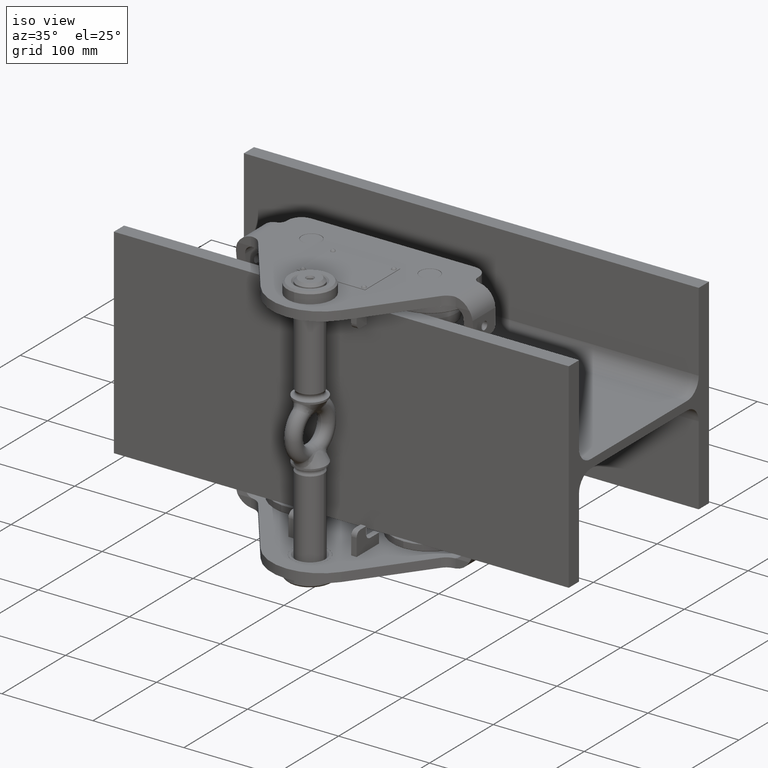
[diagram: clean part render]
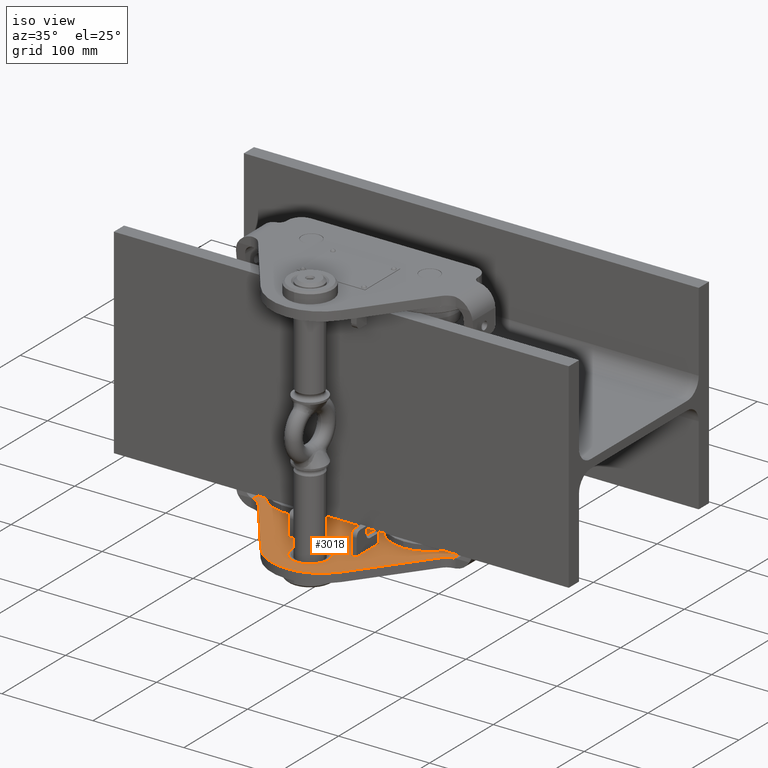
[diagram: same view with one face highlighted and labeled with its STEP entity id]
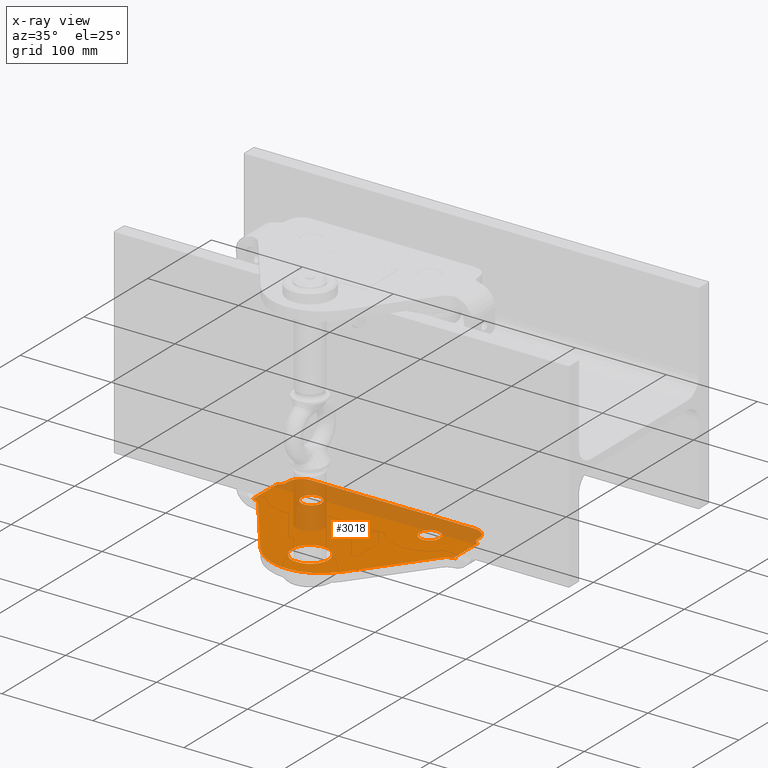
[diagram: x-ray of the same camera — body ghosted, the highlighted face saturated]
A machine part, iso view. The second image highlights one B-rep face of the part: STEP entity #3018.
The next image is the same camera in x-ray: the body ghosted, the highlighted face saturated — about 31% of this face is hidden behind the body in this view.
In plain terms, the highlighted planar face has unit normal (0, -0, 1).
Its self-contained STEP definition (entity closure, byte-faithful):
#83 = VERTEX_POINT ( 'NONE', #29218 ) ;
#91 = VERTEX_POINT ( 'NONE', #29359 ) ;
#158 = AXIS2_PLACEMENT_3D ( 'NONE', #26776, #2772, #5670 ) ;
#223 = VECTOR ( 'NONE', #8761, 1000.000000000000000 ) ;
#273 = DIRECTION ( 'NONE',  ( 0.0000000000000000000, -1.224606353822377300E-016, 1.000000000000000000 ) ) ;
#281 = EDGE_CURVE ( 'NONE', #27823, #20010, #11276, .T. ) ;
#1074 = CARTESIAN_POINT ( 'NONE',  ( 64.99999999999990100, -74.99999999999967300, -125.0000000000001100 ) ) ;
#1222 = VERTEX_POINT ( 'NONE', #33470 ) ;
#1608 = DIRECTION ( 'NONE',  ( 0.0000000000000000000, -1.224606353822377300E-016, 1.000000000000000000 ) ) ;
#1696 = DIRECTION ( 'NONE',  ( -1.000000000000000000, -0.0000000000000000000, 0.0000000000000000000 ) ) ;
#1752 = CIRCLE ( 'NONE', #29942, 54.99999999999996400 ) ;
#1779 = CARTESIAN_POINT ( 'NONE',  ( -44.31912355370719300, -173.5701594627846900, -125.0000000000001100 ) ) ;
#2052 = DIRECTION ( 'NONE',  ( 1.850371707708594400E-015, -1.000000000000000000, 0.0000000000000000000 ) ) ;
#2486 = LINE ( 'NONE', #6857, #8133 ) ;
#2650 = LINE ( 'NONE', #26316, #223 ) ;
#2771 = AXIS2_PLACEMENT_3D ( 'NONE', #23561, #26467, #8540 ) ;
#2772 = DIRECTION ( 'NONE',  ( 0.0000000000000000000, -1.224606353822377300E-016, 1.000000000000000000 ) ) ;
#2789 = CARTESIAN_POINT ( 'NONE',  ( -8.326672684688674100E-014, -140.9999999999997200, -125.0000000000001100 ) ) ;
#2852 = DIRECTION ( 'NONE',  ( -0.0000000000000000000, 1.224606353822377300E-016, -1.000000000000000000 ) ) ;
#3012 = DIRECTION ( 'NONE',  ( 0.5921847175051814200, 0.8058022464310388200, 9.867905509037951600E-017 ) ) ;
#3018 = ADVANCED_FACE ( 'NONE', ( #24505, #35965, #28792, #22596 ), #24387, .T. ) ;
#3109 = ORIENTED_EDGE ( 'NONE', *, *, #9994, .F. ) ;
#3319 = CARTESIAN_POINT ( 'NONE',  ( -105.0000000000000900, -195.9999999999997200, -125.0000000000001100 ) ) ;
#3406 = EDGE_CURVE ( 'NONE', #25295, #24900, #28711, .T. ) ;
#3812 = AXIS2_PLACEMENT_3D ( 'NONE', #9310, #273, #24858 ) ;
#3911 = AXIS2_PLACEMENT_3D ( 'NONE', #6060, #18002, #12122 ) ;
#4006 = AXIS2_PLACEMENT_3D ( 'NONE', #13997, #35286, #2052 ) ;
#4025 = DIRECTION ( 'NONE',  ( 0.0000000000000000000, -1.000000000000000000, 0.0000000000000000000 ) ) ;
#4271 = DIRECTION ( 'NONE',  ( 0.0000000000000000000, -1.000000000000000000, 0.0000000000000000000 ) ) ;
#4476 = VERTEX_POINT ( 'NONE', #31096 ) ;
#4796 = ORIENTED_EDGE ( 'NONE', *, *, #31485, .T. ) ;
#4836 = DIRECTION ( 'NONE',  ( 0.0000000000000000000, -1.224606353822377300E-016, 1.000000000000000000 ) ) ;
#5035 = DIRECTION ( 'NONE',  ( -0.0000000000000000000, 1.224606353822377300E-016, -1.000000000000000000 ) ) ;
#5171 = CARTESIAN_POINT ( 'NONE',  ( -8.326672684688674100E-014, -158.9999999999996900, -125.0000000000001100 ) ) ;
#5670 = DIRECTION ( 'NONE',  ( 0.0000000000000000000, -1.000000000000000000, 0.0000000000000000000 ) ) ;
#5678 = DIRECTION ( 'NONE',  ( 0.0000000000000000000, 1.000000000000000000, 1.224606353822377300E-016 ) ) ;
#5746 = EDGE_CURVE ( 'NONE', #13872, #91, #24051, .T. ) ;
#5752 = DIRECTION ( 'NONE',  ( -1.734723475976805500E-015, -1.000000000000000000, 0.0000000000000000000 ) ) ;
#6060 = CARTESIAN_POINT ( 'NONE',  ( -110.0000000000001000, -195.9999999999997200, -125.0000000000001100 ) ) ;
#6127 = VERTEX_POINT ( 'NONE', #36789 ) ;
#6464 = VECTOR ( 'NONE', #3012, 999.9999999999998900 ) ;
#6857 = CARTESIAN_POINT ( 'NONE',  ( -110.0000000000001000, -195.9999999999997200, -125.0000000000001100 ) ) ;
#6876 = VERTEX_POINT ( 'NONE', #31268 ) ;
#7163 = EDGE_CURVE ( 'NONE', #22470, #31628, #8221, .T. ) ;
#7385 = ORIENTED_EDGE ( 'NONE', *, *, #36929, .T. ) ;
#7478 = ORIENTED_EDGE ( 'NONE', *, *, #37649, .F. ) ;
#7607 = CARTESIAN_POINT ( 'NONE',  ( -112.5914770212122300, -90.99999999999968700, -125.0000000000000900 ) ) ;
#8133 = VECTOR ( 'NONE', #34249, 1000.000000000000000 ) ;
#8221 = LINE ( 'NONE', #14594, #10558 ) ;
#8390 = ORIENTED_EDGE ( 'NONE', *, *, #12327, .T. ) ;
#8540 = DIRECTION ( 'NONE',  ( 0.0000000000000000000, -1.000000000000000000, 0.0000000000000000000 ) ) ;
#8761 = DIRECTION ( 'NONE',  ( 1.000000000000000000, 0.0000000000000000000, 0.0000000000000000000 ) ) ;
#8784 = EDGE_CURVE ( 'NONE', #35868, #4476, #1752, .T. ) ;
#8891 = ORIENTED_EDGE ( 'NONE', *, *, #19877, .F. ) ;
#9310 = CARTESIAN_POINT ( 'NONE',  ( 89.99999999999990100, -43.99999999999968700, -125.0000000000001100 ) ) ;
#9707 = CIRCLE ( 'NONE', #3812, 14.99999999999999300 ) ;
#9994 = EDGE_CURVE ( 'NONE', #19538, #23304, #29241, .T. ) ;
#10259 = DIRECTION ( 'NONE',  ( 0.0000000000000000000, -1.224606353822377300E-016, 1.000000000000000000 ) ) ;
#10438 = CARTESIAN_POINT ( 'NONE',  ( -8.326672684688674100E-014, -138.8999999999996900, -125.0000000000001100 ) ) ;
#10558 = VECTOR ( 'NONE', #38589, 1000.000000000000000 ) ;
#10671 = ORIENTED_EDGE ( 'NONE', *, *, #31257, .T. ) ;
#10678 = CIRCLE ( 'NONE', #21621, 10.99999999999999600 ) ;
#10827 = CARTESIAN_POINT ( 'NONE',  ( 129.9999999999998900, -90.99999999999968700, -125.0000000000001100 ) ) ;
#11248 = DIRECTION ( 'NONE',  ( 0.5921847175051815300, -0.8058022464310385900, -9.867905509037949100E-017 ) ) ;
#11276 = LINE ( 'NONE', #18377, #36440 ) ;
#11945 = EDGE_CURVE ( 'NONE', #31628, #1222, #29989, .T. ) ;
#12122 = DIRECTION ( 'NONE',  ( 0.0000000000000000000, -1.000000000000000000, -1.224606353822377300E-016 ) ) ;
#12327 = EDGE_CURVE ( 'NONE', #19459, #27823, #19493, .T. ) ;
#12652 = ORIENTED_EDGE ( 'NONE', *, *, #35289, .T. ) ;
#13208 = CARTESIAN_POINT ( 'NONE',  ( -110.0000000000000900, -90.99999999999968700, -125.0000000000001100 ) ) ;
#13742 = ORIENTED_EDGE ( 'NONE', *, *, #5746, .T. ) ;
#13872 = VERTEX_POINT ( 'NONE', #33236 ) ;
#13983 = CARTESIAN_POINT ( 'NONE',  ( 100.5044433247463200, -97.11722923742202300, -125.0000000000001100 ) ) ;
#13997 = CARTESIAN_POINT ( 'NONE',  ( 112.5914770212119300, -105.9999999999996900, -125.0000000000001100 ) ) ;
#14064 = ORIENTED_EDGE ( 'NONE', *, *, #8784, .T. ) ;
#14100 = AXIS2_PLACEMENT_3D ( 'NONE', #19960, #32006, #23233 ) ;
#14355 = CARTESIAN_POINT ( 'NONE',  ( -8.080518678060055400E-014, -179.0999999999997100, -125.0000000000001100 ) ) ;
#14447 = EDGE_LOOP ( 'NONE', ( #38457, #16606 ) ) ;
#14594 = CARTESIAN_POINT ( 'NONE',  ( 129.9999999999998900, -90.99999999999968700, -125.0000000000001100 ) ) ;
#14607 = AXIS2_PLACEMENT_3D ( 'NONE', #26103, #4836, #38242 ) ;
#14666 = CIRCLE ( 'NONE', #30270, 20.10000000000000900 ) ;
#14687 = VERTEX_POINT ( 'NONE', #28843 ) ;
#15219 = VECTOR ( 'NONE', #17823, 1000.000000000000000 ) ;
#15334 = ORIENTED_EDGE ( 'NONE', *, *, #37156, .T. ) ;
#15480 = VERTEX_POINT ( 'NONE', #13983 ) ;
#15638 = CARTESIAN_POINT ( 'NONE',  ( 112.5914770212119900, -90.99999999999968700, -125.0000000000001100 ) ) ;
#15958 = CARTESIAN_POINT ( 'NONE',  ( 109.9999999999998900, -90.99999999999968700, -125.0000000000001100 ) ) ;
#16514 = DIRECTION ( 'NONE',  ( -0.0000000000000000000, 1.224606353822377300E-016, -1.000000000000000000 ) ) ;
#16606 = ORIENTED_EDGE ( 'NONE', *, *, #38182, .F. ) ;
#16709 = ORIENTED_EDGE ( 'NONE', *, *, #281, .T. ) ;
#17031 = CARTESIAN_POINT ( 'NONE',  ( 112.9999999999998900, -45.99999999999969400, -125.0000000000001100 ) ) ;
#17549 = CARTESIAN_POINT ( 'NONE',  ( -113.0000000000000900, -45.99999999999966600, -125.0000000000001100 ) ) ;
#17823 = DIRECTION ( 'NONE',  ( 0.0000000000000000000, 1.000000000000000000, 1.224606353822377300E-016 ) ) ;
#17848 = CARTESIAN_POINT ( 'NONE',  ( -20.50108546915831200, -261.7728241056752300, -125.0000000000001100 ) ) ;
#18002 = DIRECTION ( 'NONE',  ( 0.0000000000000000000, -1.224606353822377300E-016, 1.000000000000000000 ) ) ;
#18373 = VECTOR ( 'NONE', #29919, 1000.000000000000000 ) ;
#18377 = CARTESIAN_POINT ( 'NONE',  ( 109.9999999999998900, -195.9999999999997200, -125.0000000000001100 ) ) ;
#18854 = LINE ( 'NONE', #23260, #26351 ) ;
#18869 = EDGE_CURVE ( 'NONE', #6876, #14687, #9707, .T. ) ;
#19459 = VERTEX_POINT ( 'NONE', #15638 ) ;
#19484 = CARTESIAN_POINT ( 'NONE',  ( -65.00000000000012800, -74.99999999999968700, -125.0000000000001100 ) ) ;
#19493 = LINE ( 'NONE', #10827, #37063 ) ;
#19538 = VERTEX_POINT ( 'NONE', #10438 ) ;
#19736 = CARTESIAN_POINT ( 'NONE',  ( -65.00000000000012800, -63.99999999999969400, -125.0000000000001100 ) ) ;
#19877 = EDGE_CURVE ( 'NONE', #24900, #25295, #10678, .T. ) ;
#19960 = CARTESIAN_POINT ( 'NONE',  ( 64.99999999999990100, -63.99999999999966600, -125.0000000000001100 ) ) ;
#19983 = DIRECTION ( 'NONE',  ( 0.0000000000000000000, -1.000000000000000000, 0.0000000000000000000 ) ) ;
#20010 = VERTEX_POINT ( 'NONE', #20123 ) ;
#20123 = CARTESIAN_POINT ( 'NONE',  ( 109.9999999999998900, -53.41619848709535000, -125.0000000000001100 ) ) ;
#20972 = CARTESIAN_POINT ( 'NONE',  ( -90.00000000000008500, -28.99999999999969100, -125.0000000000001100 ) ) ;
#21170 = LINE ( 'NONE', #3319, #18373 ) ;
#21621 = AXIS2_PLACEMENT_3D ( 'NONE', #19736, #1608, #4271 ) ;
#21739 = EDGE_LOOP ( 'NONE', ( #33968, #8891 ) ) ;
#22109 = ORIENTED_EDGE ( 'NONE', *, *, #18869, .T. ) ;
#22470 = VERTEX_POINT ( 'NONE', #13208 ) ;
#22596 = FACE_BOUND ( 'NONE', #14447, .T. ) ;
#23233 = DIRECTION ( 'NONE',  ( 0.0000000000000000000, -1.000000000000000000, 0.0000000000000000000 ) ) ;
#23260 = CARTESIAN_POINT ( 'NONE',  ( -56.64911725311399900, -156.7923934587580600, -125.0000000000001100 ) ) ;
#23304 = VERTEX_POINT ( 'NONE', #14355 ) ;
#23360 = DIRECTION ( 'NONE',  ( 0.0000000000000000000, -1.224606353822377300E-016, 1.000000000000000000 ) ) ;
#23368 = CARTESIAN_POINT ( 'NONE',  ( -112.5914770212121600, -105.9999999999996900, -125.0000000000001100 ) ) ;
#23561 = CARTESIAN_POINT ( 'NONE',  ( -8.326672684688674100E-014, -158.9999999999996900, -125.0000000000001100 ) ) ;
#24051 = CIRCLE ( 'NONE', #26922, 8.000000000000007100 ) ;
#24262 = EDGE_LOOP ( 'NONE', ( #31373, #30867, #8390, #16709, #12652, #10671, #22109, #7478, #4796, #15334, #13742, #33055, #38579, #33520, #7385, #14064 ) ) ;
#24387 = PLANE ( 'NONE',  #3911 ) ;
#24505 = FACE_OUTER_BOUND ( 'NONE', #24262, .T. ) ;
#24858 = DIRECTION ( 'NONE',  ( 0.0000000000000000000, -1.000000000000000000, 0.0000000000000000000 ) ) ;
#24900 = VERTEX_POINT ( 'NONE', #31707 ) ;
#25295 = VERTEX_POINT ( 'NONE', #19484 ) ;
#26103 = CARTESIAN_POINT ( 'NONE',  ( -65.00000000000012800, -63.99999999999969400, -125.0000000000001100 ) ) ;
#26316 = CARTESIAN_POINT ( 'NONE',  ( -110.0000000000001000, -28.99999999999969100, -125.0000000000001100 ) ) ;
#26351 = VECTOR ( 'NONE', #11248, 1000.000000000000100 ) ;
#26365 = AXIS2_PLACEMENT_3D ( 'NONE', #33819, #10259, #4025 ) ;
#26467 = DIRECTION ( 'NONE',  ( 0.0000000000000000000, -1.224606353822377300E-016, 1.000000000000000000 ) ) ;
#26505 = CIRCLE ( 'NONE', #14100, 11.00000000000001100 ) ;
#26776 = CARTESIAN_POINT ( 'NONE',  ( 64.99999999999990100, -63.99999999999966600, -125.0000000000001100 ) ) ;
#26922 = AXIS2_PLACEMENT_3D ( 'NONE', #17549, #2852, #5752 ) ;
#27763 = VERTEX_POINT ( 'NONE', #20972 ) ;
#27800 = VERTEX_POINT ( 'NONE', #1074 ) ;
#27823 = VERTEX_POINT ( 'NONE', #15958 ) ;
#28665 = AXIS2_PLACEMENT_3D ( 'NONE', #17031, #16514, #35031 ) ;
#28711 = CIRCLE ( 'NONE', #14607, 10.99999999999999600 ) ;
#28792 = FACE_BOUND ( 'NONE', #21739, .T. ) ;
#28843 = CARTESIAN_POINT ( 'NONE',  ( 89.99999999999978700, -28.99999999999969400, -125.0000000000001100 ) ) ;
#29218 = CARTESIAN_POINT ( 'NONE',  ( 64.99999999999990100, -52.99999999999965900, -125.0000000000001100 ) ) ;
#29241 = CIRCLE ( 'NONE', #2771, 20.10000000000000900 ) ;
#29286 = EDGE_LOOP ( 'NONE', ( #3109, #33547 ) ) ;
#29359 = CARTESIAN_POINT ( 'NONE',  ( -110.0000000000001000, -53.41619848709537900, -125.0000000000001100 ) ) ;
#29902 = DIRECTION ( 'NONE',  ( 0.0000000000000000000, -1.000000000000000000, 0.0000000000000000000 ) ) ;
#29919 = DIRECTION ( 'NONE',  ( 0.0000000000000000000, -1.000000000000000000, -1.224606353822377300E-016 ) ) ;
#29942 = AXIS2_PLACEMENT_3D ( 'NONE', #2789, #23360, #29902 ) ;
#29989 = CIRCLE ( 'NONE', #37185, 15.00000000000000000 ) ;
#30270 = AXIS2_PLACEMENT_3D ( 'NONE', #5171, #32165, #19983 ) ;
#30643 = VERTEX_POINT ( 'NONE', #35897 ) ;
#30815 = CIRCLE ( 'NONE', #26365, 15.00000000000000000 ) ;
#30867 = ORIENTED_EDGE ( 'NONE', *, *, #38824, .T. ) ;
#30995 = EDGE_CURVE ( 'NONE', #22470, #91, #2486, .T. ) ;
#31096 = CARTESIAN_POINT ( 'NONE',  ( 44.31912355370705100, -173.5701594627846600, -125.0000000000001100 ) ) ;
#31257 = EDGE_CURVE ( 'NONE', #30643, #6876, #32698, .T. ) ;
#31268 = CARTESIAN_POINT ( 'NONE',  ( 104.9999999999998900, -43.99999999999978700, -125.0000000000001100 ) ) ;
#31373 = ORIENTED_EDGE ( 'NONE', *, *, #34855, .T. ) ;
#31485 = EDGE_CURVE ( 'NONE', #27763, #6127, #30815, .T. ) ;
#31628 = VERTEX_POINT ( 'NONE', #7607 ) ;
#31707 = CARTESIAN_POINT ( 'NONE',  ( -65.00000000000012800, -52.99999999999970200, -125.0000000000001100 ) ) ;
#32006 = DIRECTION ( 'NONE',  ( 0.0000000000000000000, -1.224606353822377300E-016, 1.000000000000000000 ) ) ;
#32165 = DIRECTION ( 'NONE',  ( 0.0000000000000000000, -1.224606353822377300E-016, 1.000000000000000000 ) ) ;
#32698 = LINE ( 'NONE', #32768, #15219 ) ;
#32768 = CARTESIAN_POINT ( 'NONE',  ( 104.9999999999998900, -195.9999999999997200, -125.0000000000001100 ) ) ;
#33055 = ORIENTED_EDGE ( 'NONE', *, *, #30995, .F. ) ;
#33236 = CARTESIAN_POINT ( 'NONE',  ( -105.0000000000000900, -45.99999999999961600, -125.0000000000001100 ) ) ;
#33425 = EDGE_CURVE ( 'NONE', #27800, #83, #26505, .T. ) ;
#33470 = CARTESIAN_POINT ( 'NONE',  ( -100.5044433247465300, -97.11722923742202300, -125.0000000000001100 ) ) ;
#33486 = LINE ( 'NONE', #17848, #6464 ) ;
#33520 = ORIENTED_EDGE ( 'NONE', *, *, #11945, .T. ) ;
#33547 = ORIENTED_EDGE ( 'NONE', *, *, #36637, .F. ) ;
#33819 = CARTESIAN_POINT ( 'NONE',  ( -90.00000000000008500, -43.99999999999966600, -125.0000000000001100 ) ) ;
#33968 = ORIENTED_EDGE ( 'NONE', *, *, #3406, .F. ) ;
#34249 = DIRECTION ( 'NONE',  ( 0.0000000000000000000, 1.000000000000000000, 1.224606353822377300E-016 ) ) ;
#34800 = CIRCLE ( 'NONE', #28665, 8.000000000000000000 ) ;
#34855 = EDGE_CURVE ( 'NONE', #4476, #15480, #33486, .T. ) ;
#35031 = DIRECTION ( 'NONE',  ( -1.734723475976807100E-015, -1.000000000000000000, 0.0000000000000000000 ) ) ;
#35286 = DIRECTION ( 'NONE',  ( -0.0000000000000000000, 1.224606353822377300E-016, -1.000000000000000000 ) ) ;
#35289 = EDGE_CURVE ( 'NONE', #20010, #30643, #34800, .T. ) ;
#35602 = CIRCLE ( 'NONE', #4006, 15.00000000000000000 ) ;
#35634 = DIRECTION ( 'NONE',  ( 0.0000000000000000000, -1.000000000000000000, 0.0000000000000000000 ) ) ;
#35722 = CIRCLE ( 'NONE', #158, 11.00000000000001100 ) ;
#35868 = VERTEX_POINT ( 'NONE', #1779 ) ;
#35897 = CARTESIAN_POINT ( 'NONE',  ( 104.9999999999998900, -45.99999999999963800, -125.0000000000001100 ) ) ;
#35965 = FACE_BOUND ( 'NONE', #29286, .T. ) ;
#36440 = VECTOR ( 'NONE', #5678, 1000.000000000000000 ) ;
#36637 = EDGE_CURVE ( 'NONE', #23304, #19538, #14666, .T. ) ;
#36789 = CARTESIAN_POINT ( 'NONE',  ( -105.0000000000000900, -43.99999999999977300, -125.0000000000001100 ) ) ;
#36929 = EDGE_CURVE ( 'NONE', #1222, #35868, #18854, .T. ) ;
#37063 = VECTOR ( 'NONE', #1696, 1000.000000000000000 ) ;
#37156 = EDGE_CURVE ( 'NONE', #6127, #13872, #21170, .T. ) ;
#37185 = AXIS2_PLACEMENT_3D ( 'NONE', #23368, #5035, #35634 ) ;
#37649 = EDGE_CURVE ( 'NONE', #27763, #14687, #2650, .T. ) ;
#38182 = EDGE_CURVE ( 'NONE', #83, #27800, #35722, .T. ) ;
#38242 = DIRECTION ( 'NONE',  ( 0.0000000000000000000, -1.000000000000000000, 0.0000000000000000000 ) ) ;
#38457 = ORIENTED_EDGE ( 'NONE', *, *, #33425, .F. ) ;
#38579 = ORIENTED_EDGE ( 'NONE', *, *, #7163, .T. ) ;
#38589 = DIRECTION ( 'NONE',  ( -1.000000000000000000, -0.0000000000000000000, 0.0000000000000000000 ) ) ;
#38824 = EDGE_CURVE ( 'NONE', #15480, #19459, #35602, .T. ) ;